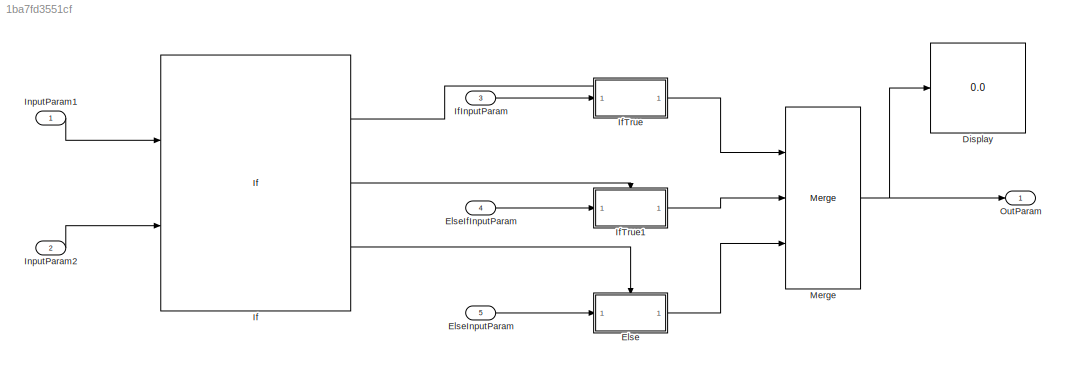
MODEL slx_1ba7fd3551cf
KIND model
CONFIG AbsTol = auto
CONFIG EnableMultiTasking = off
CONFIG FixedStep = auto
CONFIG MaxStep = auto
CONFIG MinStep = auto
CONFIG RelTol = 1e-3
CONFIG SampleTimeConstraint = Unconstrained
CONFIG Solver = FixedStepDiscrete
CONFIG SolverName = FixedStepDiscrete
CONFIG StartTime = 0.0
CONFIG StopTime = 10.0
BLOCK [Display] Display
  Decimation = 1
  Ports = [1]
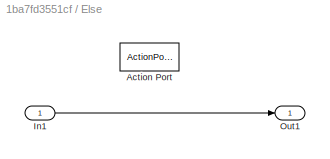
BLOCK [SubSystem] Else
  Ports = [1, 1, 0, 0, 0, 0, 0, 1]
  RequestExecContextInheritance = off
  TreatAsAtomicUnit = on
  Variant = off
BLOCK [ActionPort] Else/Action Port
  ActionType = else
BLOCK [Inport] Else/In1
  IconDisplay = Port number
BLOCK [Outport] Else/Out1
  IconDisplay = Port number
BLOCK [Inport] ElseIfInputParam
  IconDisplay = Port number
  Port = 4
BLOCK [Inport] ElseInputParam
  IconDisplay = Port number
  Port = 5
BLOCK [If] If
  ElseIfExpressions = u1 < 10
  IfExpression = u1 >= 10
  NumInputs = 2
  Ports = [2, 3]
BLOCK [Inport] IfInputParam
  IconDisplay = Port number
  Port = 3
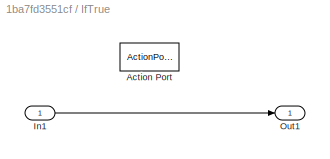
BLOCK [SubSystem] IfTrue
  Ports = [1, 1, 0, 0, 0, 0, 0, 1]
  RequestExecContextInheritance = off
  TreatAsAtomicUnit = on
  Variant = off
BLOCK [ActionPort] IfTrue/Action Port
  ActionType = then
BLOCK [Inport] IfTrue/In1
  IconDisplay = Port number
BLOCK [Outport] IfTrue/Out1
  IconDisplay = Port number
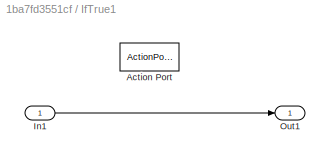
BLOCK [SubSystem] IfTrue1
  Ports = [1, 1, 0, 0, 0, 0, 0, 1]
  RequestExecContextInheritance = off
  TreatAsAtomicUnit = on
  Variant = off
BLOCK [ActionPort] IfTrue1/Action Port
  ActionType = elseif
BLOCK [Inport] IfTrue1/In1
  IconDisplay = Port number
BLOCK [Outport] IfTrue1/Out1
  IconDisplay = Port number
BLOCK [Inport] InputParam1
  IconDisplay = Port number
BLOCK [Inport] InputParam2
  IconDisplay = Port number
  Port = 2
BLOCK [Merge] Merge
  Inputs = 3
  Ports = [3, 1]
BLOCK [Outport] OutParam
  IconDisplay = Port number
LINE Else/In1:1 -> Else/Out1:1
LINE Else:1 -> Merge:3
LINE ElseIfInputParam:1 -> IfTrue1:1
LINE ElseInputParam:1 -> Else:1
LINE If:1 -> IfTrue:ifaction
LINE If:2 -> IfTrue1:ifaction
LINE If:3 -> Else:ifaction
LINE IfInputParam:1 -> IfTrue:1
LINE IfTrue/In1:1 -> IfTrue/Out1:1
LINE IfTrue1/In1:1 -> IfTrue1/Out1:1
LINE IfTrue1:1 -> Merge:2
LINE IfTrue:1 -> Merge:1
LINE InputParam1:1 -> If:1
LINE InputParam2:1 -> If:2
NET Merge:1 -> Display:1, OutParam:1
note: NET lines group one-source signal fan-out (src -> all destinations, sorted); 1:1 wires keep LINE
